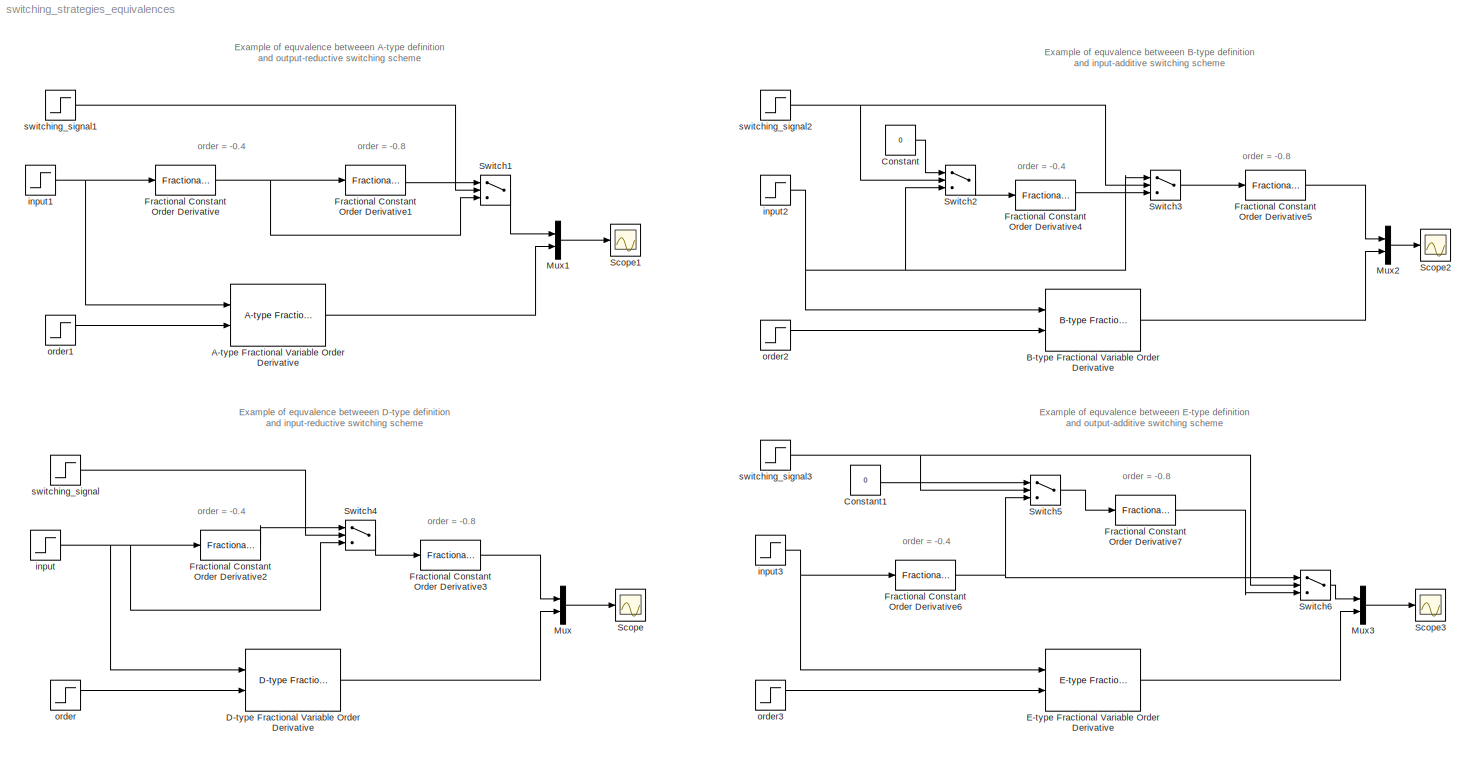
MODEL switching_strategies_equivalences
KIND model
BLOCK [Reference] A-type Fractional Variable Order Derivative  REF=voderiv/A-type Fractional Variable Order Derivative
  N = 1
  Nbuf = 500
  Ports = [2, 1]
  SourceBlock = voderiv/A-type Fractional Variable Order Derivative
  SourceType = Variable Fractional Order Derivative 1st type
  Ts = 0.02
BLOCK [Reference] B-type Fractional Variable Order Derivative  REF=voderiv/B-type Fractional Variable Order Derivative
  N = 1
  Nbuf = 500
  Ports = [2, 1]
  SourceBlock = voderiv/B-type Fractional Variable Order Derivative
  SourceType = Variable Fractional Order Derivative 2nd type
  Ts = 0.02
BLOCK [Constant] Constant
  OutDataType = fixdt(1, 16)
  OutScaling = 2^0
  Value = 0
BLOCK [Constant] Constant1
  OutDataType = fixdt(1, 16)
  OutScaling = 2^0
  Value = 0
BLOCK [Reference] D-type Fractional Variable Order Derivative  REF=voderiv/D-type Fractional Variable Order Derivative
  N = 1
  Nbuf = 500
  Ports = [2, 1]
  SourceBlock = voderiv/D-type Fractional Variable Order Derivative
  SourceType = Variable Fractional Order Derivative 4th type
  Ts = 0.02
BLOCK [Reference] E-type Fractional Variable Order Derivative  REF=voderiv/E-type Fractional Variable Order Derivative
  N = 1
  Nbuf = 500
  Ports = [2, 1]
  SourceBlock = voderiv/E-type Fractional Variable Order Derivative
  SourceType = Variable Fractional Order Derivative 5th type
  Ts = 0.02
BLOCK [Reference] Fractional Constant Order Derivative  REF=voderiv/Fractional Constant Order Derivative
  N = -0.4
  Nbuf = 500
  Ports = [1, 1]
  SourceBlock = voderiv/Fractional Constant Order Derivative
  SourceType = Fractional Order Derivative
  Ts = 0.02
BLOCK [Reference] Fractional Constant Order Derivative1  REF=voderiv/Fractional Constant Order Derivative
  N = -0.8
  Nbuf = 500
  Ports = [1, 1]
  SourceBlock = voderiv/Fractional Constant Order Derivative
  SourceType = Fractional Order Derivative
  Ts = 0.02
BLOCK [Reference] Fractional Constant Order Derivative2  REF=voderiv/Fractional Constant Order Derivative
  N = -0.4
  Nbuf = 500
  Ports = [1, 1]
  SourceBlock = voderiv/Fractional Constant Order Derivative
  SourceType = Fractional Order Derivative
  Ts = 0.02
BLOCK [Reference] Fractional Constant Order Derivative3  REF=voderiv/Fractional Constant Order Derivative
  N = -0.8
  Nbuf = 500
  Ports = [1, 1]
  SourceBlock = voderiv/Fractional Constant Order Derivative
  SourceType = Fractional Order Derivative
  Ts = 0.02
BLOCK [Reference] Fractional Constant Order Derivative4  REF=voderiv/Fractional Constant Order Derivative
  N = -0.4
  Nbuf = 500
  Ports = [1, 1]
  SourceBlock = voderiv/Fractional Constant Order Derivative
  SourceType = Fractional Order Derivative
  Ts = 0.02
BLOCK [Reference] Fractional Constant Order Derivative5  REF=voderiv/Fractional Constant Order Derivative
  N = -0.8
  Nbuf = 500
  Ports = [1, 1]
  SourceBlock = voderiv/Fractional Constant Order Derivative
  SourceType = Fractional Order Derivative
  Ts = 0.02
BLOCK [Reference] Fractional Constant Order Derivative6  REF=voderiv/Fractional Constant Order Derivative
  N = -0.4
  Nbuf = 500
  Ports = [1, 1]
  SourceBlock = voderiv/Fractional Constant Order Derivative
  SourceType = Fractional Order Derivative
  Ts = 0.02
BLOCK [Reference] Fractional Constant Order Derivative7  REF=voderiv/Fractional Constant Order Derivative
  N = -0.8
  Nbuf = 500
  Ports = [1, 1]
  SourceBlock = voderiv/Fractional Constant Order Derivative
  SourceType = Fractional Order Derivative
  Ts = 0.02
BLOCK [Mux] Mux
  DisplayOption = bar
  Inputs = 2
  Ports = [2, 1]
BLOCK [Mux] Mux1
  DisplayOption = bar
  Inputs = 2
  Ports = [2, 1]
BLOCK [Mux] Mux2
  DisplayOption = bar
  Inputs = 2
  Ports = [2, 1]
BLOCK [Mux] Mux3
  DisplayOption = bar
  Inputs = 2
  Ports = [2, 1]
BLOCK [Scope] Scope
  DataFormat = StructureWithTime
  Floating = off
  NumInputPorts = 1
  Ports = [1]
  SampleTime = 0
BLOCK [Scope] Scope1
  DataFormat = StructureWithTime
  Floating = off
  NumInputPorts = 1
  Ports = [1]
  SampleTime = 0
  SaveName = ScopeData1
BLOCK [Scope] Scope2
  DataFormat = StructureWithTime
  Floating = off
  NumInputPorts = 1
  Ports = [1]
  SampleTime = 0
  SaveName = ScopeData2
BLOCK [Scope] Scope3
  DataFormat = StructureWithTime
  Floating = off
  NumInputPorts = 1
  Ports = [1]
  SampleTime = 0
  SaveName = ScopeData3
BLOCK [Switch] Switch1
  InputSameDT = off
  OutDataType = fixdt(1, 16)
  OutScaling = 2^0
  SaturateOnIntegerOverflow = off
  Threshold = 1
BLOCK [Switch] Switch2
  InputSameDT = off
  OutDataType = fixdt(1, 16)
  OutScaling = 2^0
  SaturateOnIntegerOverflow = off
  Threshold = 1
BLOCK [Switch] Switch3
  InputSameDT = off
  OutDataType = fixdt(1, 16)
  OutScaling = 2^0
  SaturateOnIntegerOverflow = off
  Threshold = 1
BLOCK [Switch] Switch4
  InputSameDT = off
  OutDataType = fixdt(1, 16)
  OutScaling = 2^0
  SaturateOnIntegerOverflow = off
  Threshold = 1
BLOCK [Switch] Switch5
  InputSameDT = off
  OutDataType = fixdt(1, 16)
  OutScaling = 2^0
  SaturateOnIntegerOverflow = off
  Threshold = 1
BLOCK [Switch] Switch6
  InputSameDT = off
  OutDataType = fixdt(1, 16)
  OutScaling = 2^0
  SaturateOnIntegerOverflow = off
  Threshold = 1
BLOCK [Step] input
  SampleTime = 0.02
  Time = 0.5
BLOCK [Step] input1
  SampleTime = 0.02
  Time = 0.5
BLOCK [Step] input2
  SampleTime = 0.02
  Time = 0.5
BLOCK [Step] input3
  SampleTime = 0.02
  Time = 0.5
BLOCK [Step] order
  After = -0.8
  Before = -0.4-0.8
  SampleTime = 0.02
  Time = 5
BLOCK [Step] order1
  After = -0.4
  Before = -0.4-0.8
  SampleTime = 0.02
  Time = 5
BLOCK [Step] order2
  After = -0.4-0.8
  Before = -0.8
  SampleTime = 0.02
  Time = 5
BLOCK [Step] order3
  After = -0.4-0.8
  Before = -0.4
  SampleTime = 0.02
  Time = 5
BLOCK [Step] switching_signal
  After = 0
  Before = 1
  SampleTime = 0.02
  Time = 5
BLOCK [Step] switching_signal1
  After = 0
  Before = 1
  SampleTime = 0.02
  Time = 5
BLOCK [Step] switching_signal2
  After = 0
  Before = 1
  SampleTime = 0.02
  Time = 5
BLOCK [Step] switching_signal3
  After = 0
  Before = 1
  SampleTime = 0.02
  Time = 5
ANNOTATION (root): Example of equvalence betweeen A-type definition\n and output-reductive switching scheme
ANNOTATION (root): Example of equvalence betweeen B-type definition\n and input-additive switching scheme
ANNOTATION (root): Example of equvalence betweeen D-type definition\n and input-reductive switching scheme
ANNOTATION (root): Example of equvalence betweeen E-type definition\n and output-additive switching scheme
ANNOTATION (root): order = -0.4
ANNOTATION (root): order = -0.8
LINE A-type Fractional Variable Order Derivative:1 -> Mux1:2
LINE B-type Fractional Variable Order Derivative:1 -> Mux2:2
LINE Constant1:1 -> Switch5:1
LINE Constant:1 -> Switch2:1
LINE D-type Fractional Variable Order Derivative:1 -> Mux:2
LINE E-type Fractional Variable Order Derivative:1 -> Mux3:2
LINE Fractional Constant Order Derivative1:1 -> Switch1:1
LINE Fractional Constant Order Derivative2:1 -> Switch4:1
LINE Fractional Constant Order Derivative3:1 -> Mux:1
LINE Fractional Constant Order Derivative4:1 -> Switch3:3
LINE Fractional Constant Order Derivative5:1 -> Mux2:1
NET Fractional Constant Order Derivative6:1 -> Switch5:3, Switch6:1
LINE Fractional Constant Order Derivative7:1 -> Switch6:3
NET Fractional Constant Order Derivative:1 -> Fractional Constant Order Derivative1:1, Switch1:3
LINE Mux1:1 -> Scope1:1
LINE Mux2:1 -> Scope2:1
LINE Mux3:1 -> Scope3:1
LINE Mux:1 -> Scope:1
LINE Switch1:1 -> Mux1:1
LINE Switch2:1 -> Fractional Constant Order Derivative4:1
LINE Switch3:1 -> Fractional Constant Order Derivative5:1
LINE Switch4:1 -> Fractional Constant Order Derivative3:1
LINE Switch5:1 -> Fractional Constant Order Derivative7:1
LINE Switch6:1 -> Mux3:1
NET input1:1 -> A-type Fractional Variable Order Derivative:1, Fractional Constant Order Derivative:1
NET input2:1 -> B-type Fractional Variable Order Derivative:1, Switch2:3, Switch3:1
NET input3:1 -> E-type Fractional Variable Order Derivative:1, Fractional Constant Order Derivative6:1
NET input:1 -> D-type Fractional Variable Order Derivative:1, Fractional Constant Order Derivative2:1, Switch4:3
LINE order1:1 -> A-type Fractional Variable Order Derivative:2
LINE order2:1 -> B-type Fractional Variable Order Derivative:2
LINE order3:1 -> E-type Fractional Variable Order Derivative:2
LINE order:1 -> D-type Fractional Variable Order Derivative:2
LINE switching_signal1:1 -> Switch1:2
NET switching_signal2:1 -> Switch2:2, Switch3:2
NET switching_signal3:1 -> Switch5:2, Switch6:2
LINE switching_signal:1 -> Switch4:2
note: NET lines group one-source signal fan-out (src -> all destinations, sorted); 1:1 wires keep LINE
